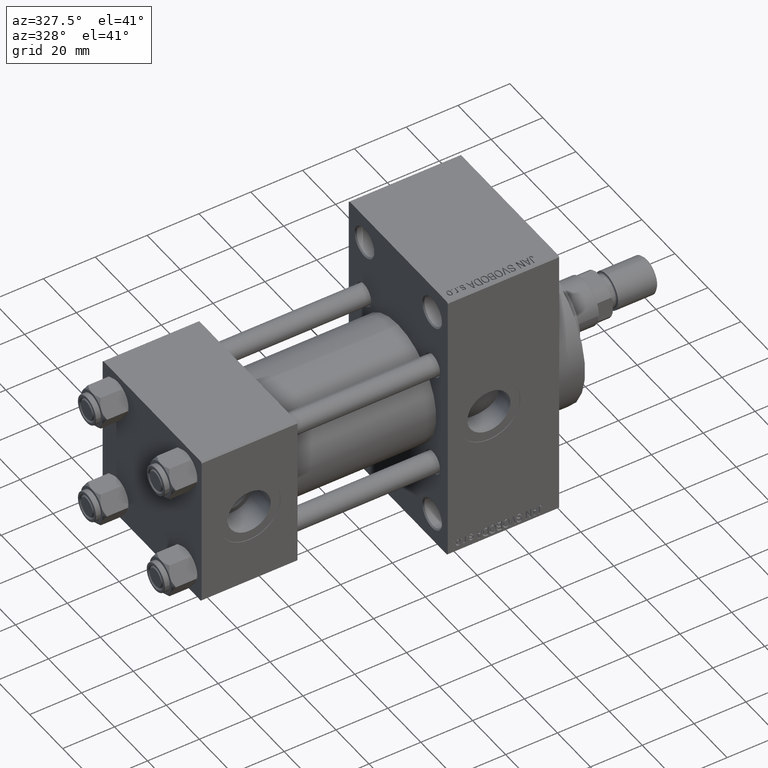
[diagram: clean part render]
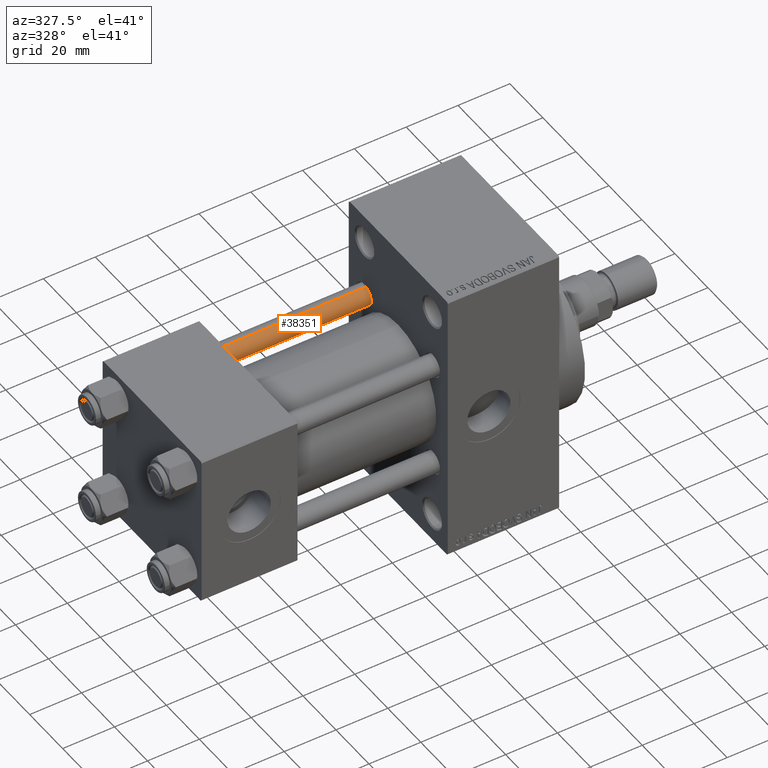
[diagram: same view with one face highlighted and labeled with its STEP entity id]
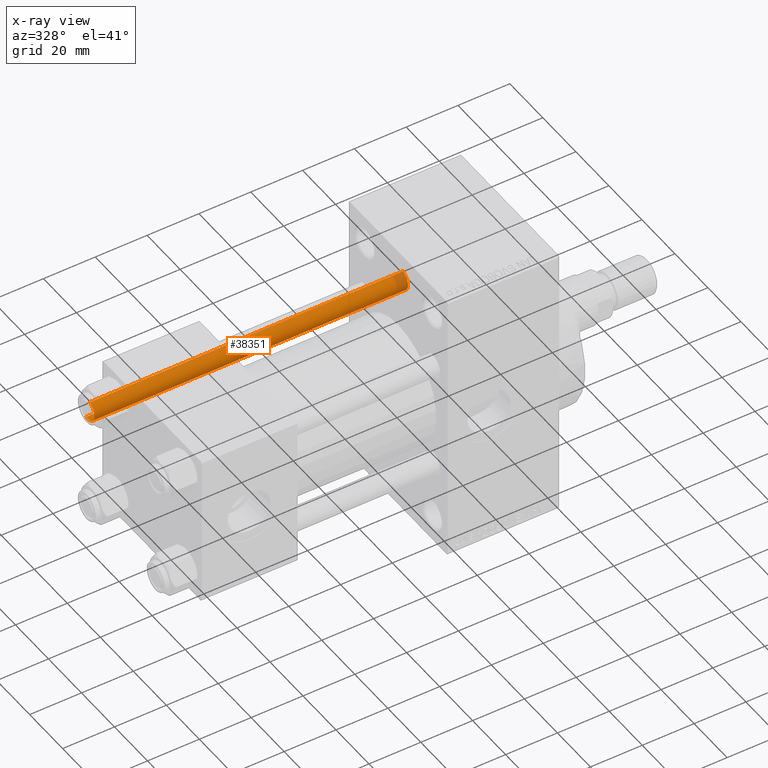
[diagram: x-ray of the same camera — body ghosted, the highlighted face saturated]
A machine part, auxiliary view. The second image highlights one B-rep face of the part: STEP entity #38351.
The next image is the same camera in x-ray: the body ghosted, the highlighted face saturated — about 3% of this face is hidden behind the body in this view.
In plain terms, the highlighted cylindrical surface (edge-blend (fillet) strip) has radius 4 mm, axis along (-1, -0, 0).
Its self-contained STEP definition (entity closure, byte-faithful):
#735 = VECTOR ( 'NONE', #12957, 1000.000000000000000 ) ;
#1304 = VERTEX_POINT ( 'NONE', #47221 ) ;
#2654 = VERTEX_POINT ( 'NONE', #11339 ) ;
#2899 = EDGE_CURVE ( 'NONE', #43997, #25211, #23152, .T. ) ;
#4485 = CARTESIAN_POINT ( 'NONE',  ( -4.000000000000000000, 0.000000000000000000, 122.0000000000000000 ) ) ;
#11025 = ORIENTED_EDGE ( 'NONE', *, *, #17958, .T. ) ;
#11339 = CARTESIAN_POINT ( 'NONE',  ( 4.000000000000000000, 4.898587196589411843E-16, 0.5000000000000559552 ) ) ;
#11424 = CIRCLE ( 'NONE', #24556, 4.000000000000000000 ) ;
#12004 = CARTESIAN_POINT ( 'NONE',  ( -4.000000000000000000, 0.000000000000000000, 0.5000000000000559552 ) ) ;
#12957 = DIRECTION ( 'NONE',  ( -0.000000000000000000, -0.000000000000000000, -1.000000000000000000 ) ) ;
#13653 = DIRECTION ( 'NONE',  ( -1.000000000000000000, 0.000000000000000000, 0.000000000000000000 ) ) ;
#13752 = AXIS2_PLACEMENT_3D ( 'NONE', #14191, #28479, #17571 ) ;
#14191 = CARTESIAN_POINT ( 'NONE',  ( 0.000000000000000000, 0.000000000000000000, 0.5000000000000559552 ) ) ;
#16125 = ORIENTED_EDGE ( 'NONE', *, *, #37237, .T. ) ;
#16863 = CIRCLE ( 'NONE', #13752, 4.000000000000000000 ) ;
#17023 = CARTESIAN_POINT ( 'NONE',  ( -4.000000000000000000, 0.000000000000000000, 121.5000000000000426 ) ) ;
#17571 = DIRECTION ( 'NONE',  ( 1.000000000000000000, 0.000000000000000000, 0.000000000000000000 ) ) ;
#17958 = EDGE_CURVE ( 'NONE', #1304, #43997, #11424, .T. ) ;
#20220 = LINE ( 'NONE', #31376, #735 ) ;
#21638 = DIRECTION ( 'NONE',  ( -0.000000000000000000, -0.000000000000000000, -1.000000000000000000 ) ) ;
#23152 = LINE ( 'NONE', #4485, #44169 ) ;
#24556 = AXIS2_PLACEMENT_3D ( 'NONE', #46187, #27783, #24855 ) ;
#24855 = DIRECTION ( 'NONE',  ( 1.000000000000000000, 0.000000000000000000, 0.000000000000000000 ) ) ;
#25211 = VERTEX_POINT ( 'NONE', #12004 ) ;
#25268 = CARTESIAN_POINT ( 'NONE',  ( 0.000000000000000000, 0.000000000000000000, 122.0000000000000000 ) ) ;
#25510 = FACE_OUTER_BOUND ( 'NONE', #34051, .T. ) ;
#26160 = AXIS2_PLACEMENT_3D ( 'NONE', #25268, #21638, #13653 ) ;
#27783 = DIRECTION ( 'NONE',  ( 0.000000000000000000, 0.000000000000000000, -1.000000000000000000 ) ) ;
#28479 = DIRECTION ( 'NONE',  ( -0.000000000000000000, -0.000000000000000000, 1.000000000000000000 ) ) ;
#31376 = CARTESIAN_POINT ( 'NONE',  ( 4.000000000000000000, 4.898587196589411843E-16, 122.0000000000000000 ) ) ;
#32026 = ORIENTED_EDGE ( 'NONE', *, *, #2899, .T. ) ;
#33582 = DIRECTION ( 'NONE',  ( -0.000000000000000000, -0.000000000000000000, -1.000000000000000000 ) ) ;
#34051 = EDGE_LOOP ( 'NONE', ( #45578, #11025, #32026, #16125 ) ) ;
#37237 = EDGE_CURVE ( 'NONE', #25211, #2654, #16863, .T. ) ;
#38351 = ADVANCED_FACE ( 'NONE', ( #25510 ), #40283, .T. ) ;
#40283 = CYLINDRICAL_SURFACE ( 'NONE', #26160, 4.000000000000000000 ) ;
#41861 = EDGE_CURVE ( 'NONE', #1304, #2654, #20220, .T. ) ;
#43997 = VERTEX_POINT ( 'NONE', #17023 ) ;
#44169 = VECTOR ( 'NONE', #33582, 1000.000000000000000 ) ;
#45578 = ORIENTED_EDGE ( 'NONE', *, *, #41861, .F. ) ;
#46187 = CARTESIAN_POINT ( 'NONE',  ( 0.000000000000000000, 0.000000000000000000, 121.5000000000000426 ) ) ;
#47221 = CARTESIAN_POINT ( 'NONE',  ( 4.000000000000000000, 4.898587196589411843E-16, 121.5000000000000426 ) ) ;